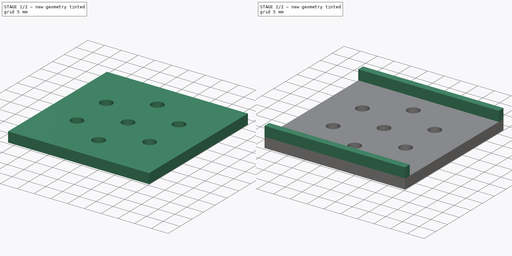
[diagram: build sequence overview — one tinted view per stage of 2, left to right]
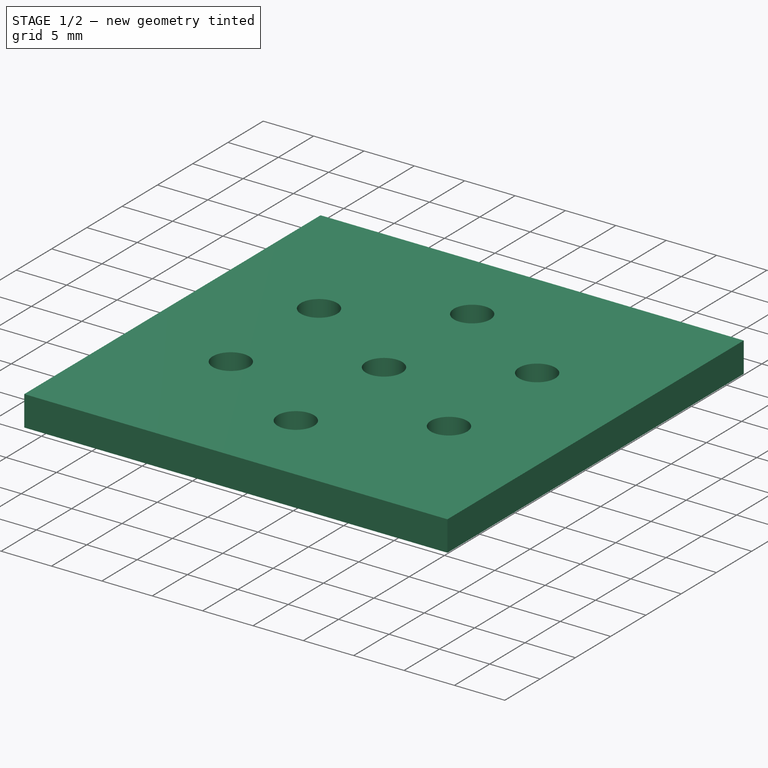
[diagram: stage 1 of 2 — iso view after this stage's code; geometry added in this stage tinted green]
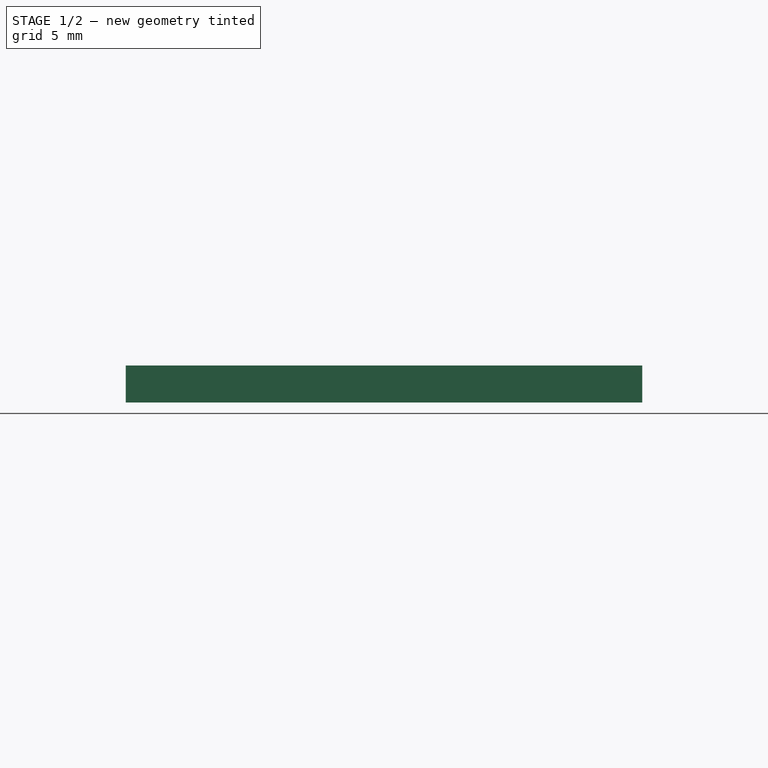
[diagram: stage 1 of 2 — front view after this stage's code; geometry added in this stage tinted green]
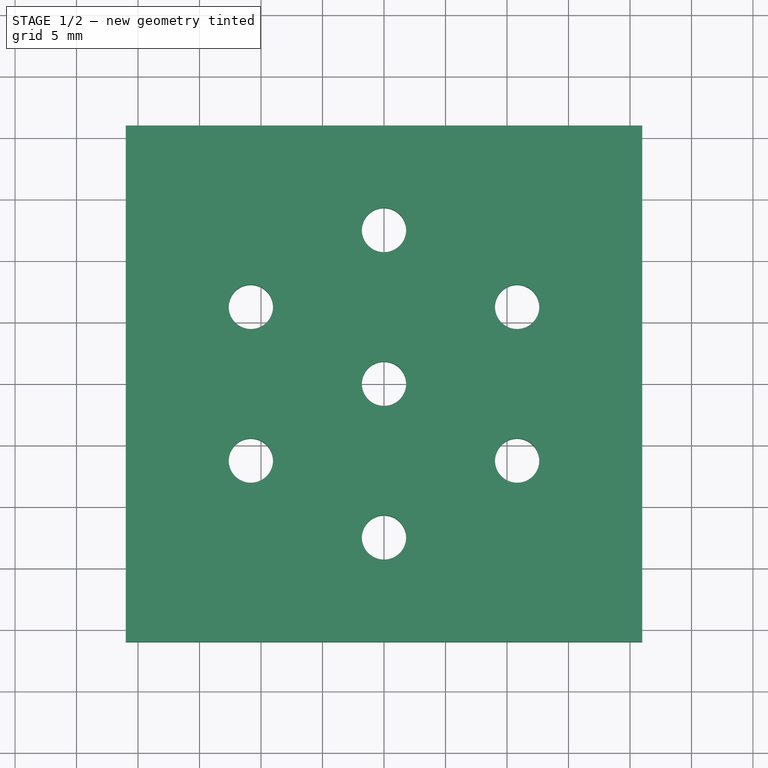
[diagram: stage 1 of 2 — top view after this stage's code; geometry added in this stage tinted green]
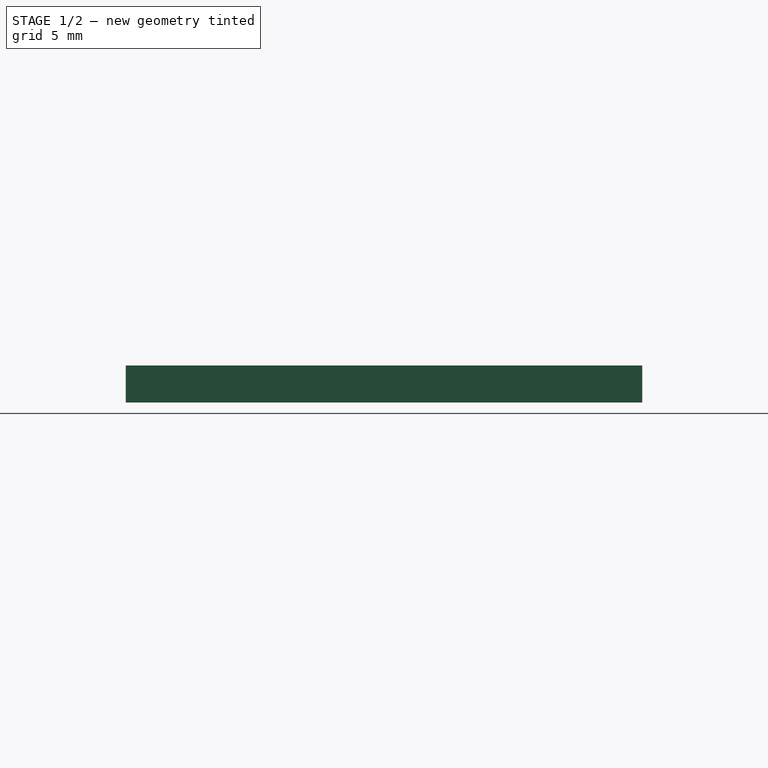
[diagram: stage 1 of 2 — right view after this stage's code; geometry added in this stage tinted green]
FCSTD DOCUMENT
Label: jheadDrillJig
objects: Sketcher::SketchObject×2, PartDesign::Pad×2
note: 6 computed .brp shape members not serialized (recipe doc carries the construction recipe); baked Part::Feature solids carry a one-line shape summary decoded from their .brp

FEATURE [Sketcher::SketchObject] Sketch
  sketch-geometry (20):
    g0: LineSegment StartX=-21 StartY=21 StartZ=0 EndX=21 EndY=21 EndZ=0
    g1: LineSegment StartX=21 StartY=21 StartZ=0 EndX=21 EndY=-21 EndZ=0
    g2: LineSegment StartX=-21 StartY=21 StartZ=0 EndX=-21 EndY=0 EndZ=0
    g3: LineSegment StartX=-21 StartY=0 StartZ=0 EndX=-21 EndY=-21 EndZ=0
    g4: LineSegment StartX=-21 StartY=-21 StartZ=0 EndX=0 EndY=-21 EndZ=0
    g5: LineSegment StartX=0 StartY=-21 StartZ=0 EndX=21 EndY=-21 EndZ=0
    g6: LineSegment [constr] StartX=-10.8253 StartY=6.25 StartZ=0 EndX=-10.8253 EndY=-6.25 EndZ=0
    g7: LineSegment [constr] StartX=-10.8253 StartY=-6.25 StartZ=0 EndX=0 EndY=-12.5 EndZ=0
    g8: LineSegment [constr] StartX=0 StartY=-12.5 StartZ=0 EndX=10.8253 EndY=-6.25 EndZ=0
    g9: LineSegment [constr] StartX=10.8253 StartY=-6.25 StartZ=0 EndX=10.8253 EndY=6.25 EndZ=0
    g10: LineSegment [constr] StartX=10.8253 StartY=6.25 StartZ=0 EndX=0 EndY=12.5 EndZ=0
    g11: LineSegment [constr] StartX=0 StartY=12.5 StartZ=0 EndX=-10.8253 EndY=6.25 EndZ=0
    g12: Circle [constr] CenterX=0 CenterY=0 CenterZ=0 NormalX=0 NormalY=0 NormalZ=1 Radius=12.5
    g13: Circle CenterX=0 CenterY=12.5 CenterZ=0 NormalX=0 NormalY=0 NormalZ=1 Radius=1.8
    g14: Circle CenterX=10.8253 CenterY=6.25 CenterZ=0 NormalX=0 NormalY=0 NormalZ=1 Radius=1.8
    g15: Circle CenterX=10.8253 CenterY=-6.25 CenterZ=0 NormalX=0 NormalY=0 NormalZ=1 Radius=1.8
    g16: Circle CenterX=0 CenterY=-12.5 CenterZ=0 NormalX=0 NormalY=0 NormalZ=1 Radius=1.8
    g17: Circle CenterX=-10.8253 CenterY=-6.25 CenterZ=0 NormalX=0 NormalY=0 NormalZ=1 Radius=1.8
    g18: Circle CenterX=-10.8253 CenterY=6.25 CenterZ=0 NormalX=0 NormalY=0 NormalZ=1 Radius=1.8
    g19: Circle CenterX=0 CenterY=0 CenterZ=0 NormalX=0 NormalY=0 NormalZ=1 Radius=1.8
  constraints (53):
    c: Coincident(g0,g1)
    c: Horizontal(g0)
    c: Vertical(g1)
    c: Coincident(g2,g0)
    c: Vertical(g2)
    c: Coincident(g2,g3)
    c: Vertical(g3)
    c: Coincident(g3,g4)
    c: Horizontal(g4)
    c: Coincident(g4,g5)
    c: Coincident(g5,g1)
    c: Horizontal(g5)
    c: Equal(g4,g5)
    c: Equal(g2,g3)
    c: DistanceY(g1) = -42
    c: DistanceX(g0) = 42
    c: DistanceX(g4) = 0
    c: DistanceY(g2) = 0
    c: Vertical(g6)
    c: Coincident(g6,g7)
    c: Coincident(g7,g8)
    c: Coincident(g8,g9)
    c: Vertical(g9)
    c: Coincident(g9,g10)
    c: Coincident(g10,g11)
    c: Coincident(g11,g6)
    c: PointOnObject(g10,g12)
    c: PointOnObject(g9,g12)
    c: PointOnObject(g8,g12)
    c: PointOnObject(g7,g12)
    c: PointOnObject(g6,g12)
    c: PointOnObject(g6,g12)
    c: DistanceX(g12) = 0
    c: DistanceY(g12) = 0
    c: Equal(g10,g9)
    c: Equal(g9,g8)
    c: Radius(g12) = 12.5
    c: Equal(g9,g6)
    c: Equal(g11,g10)
    c: Coincident(g13,g10)
    c: Coincident(g14,g9)
    c: Coincident(g15,g8)
    c: Coincident(g16,g7)
    c: Coincident(g17,g6)
    c: Coincident(g18,g6)
    c: Equal(g18,g13)
    c: Equal(g13,g14)
    c: Equal(g14,g15)
    c: Equal(g15,g16)
    c: Equal(g16,g17)
    c: Radius(g13) = 1.8
    c: Coincident(g19,g12)
    c: Equal(g19,g14)
FEATURE [PartDesign::Pad] Pad
  Length = 3
  MirroredExtent = false
  Sketch = -> Sketch
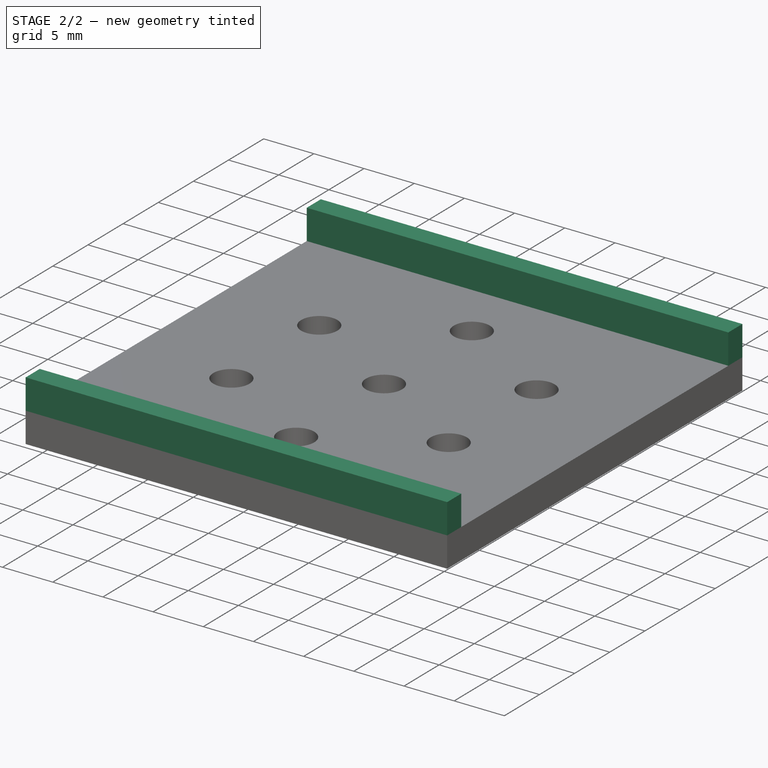
[diagram: stage 2 of 2 — iso view after this stage's code; geometry added in this stage tinted green]
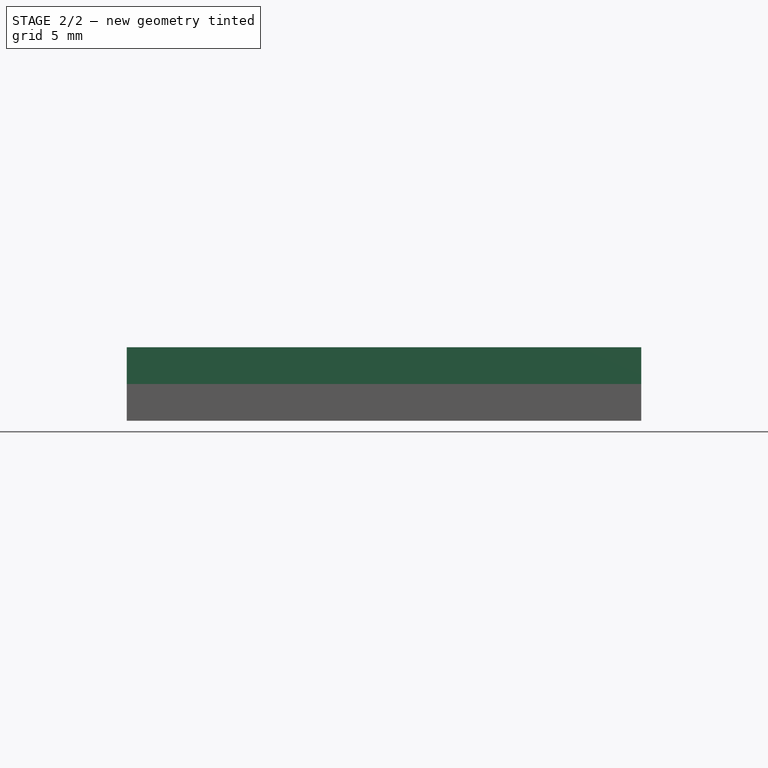
[diagram: stage 2 of 2 — front view after this stage's code; geometry added in this stage tinted green]
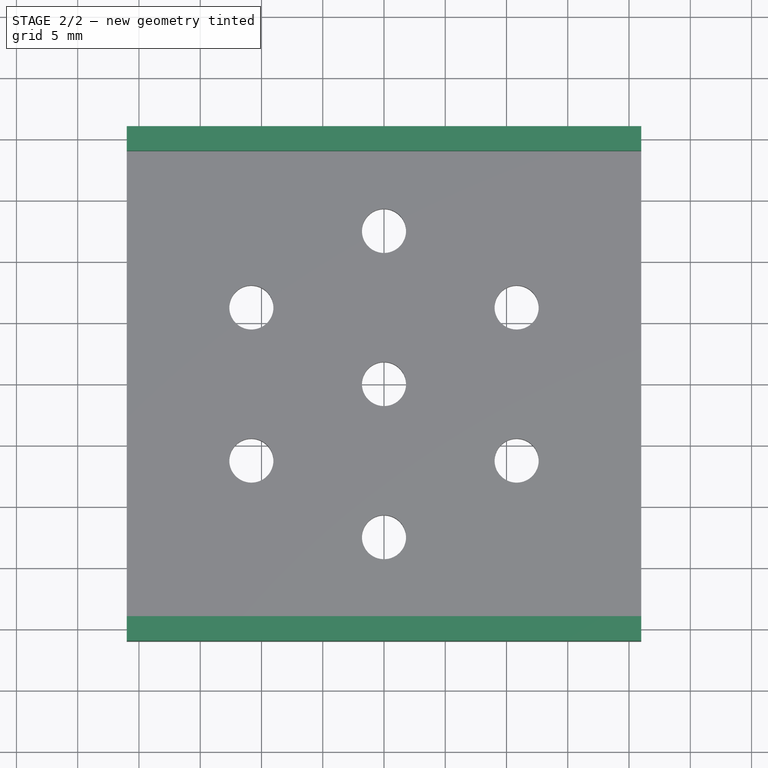
[diagram: stage 2 of 2 — top view after this stage's code; geometry added in this stage tinted green]
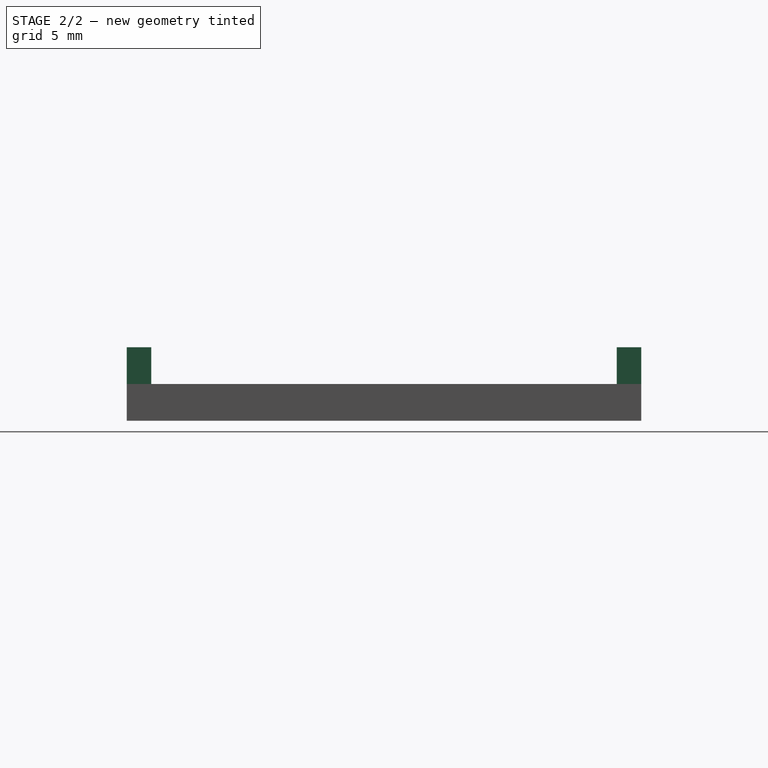
[diagram: stage 2 of 2 — right view after this stage's code; geometry added in this stage tinted green]
FEATURE [Sketcher::SketchObject] Sketch001
  Placement = pos=(0,0,3) rot=(0,0,1;0rad)
  Support = -> Pad [Face15]
  sketch-geometry (12):
    g0: LineSegment StartX=-21 StartY=21 StartZ=0 EndX=21 EndY=21 EndZ=0
    g1: LineSegment StartX=21 StartY=21 StartZ=0 EndX=21 EndY=19 EndZ=0
    g2: LineSegment StartX=-21 StartY=19 StartZ=0 EndX=-21 EndY=21 EndZ=0
    g3: LineSegment StartX=-21 StartY=-21 StartZ=0 EndX=21 EndY=-21 EndZ=0
    g4: LineSegment StartX=21 StartY=-21 StartZ=0 EndX=21 EndY=-19 EndZ=0
    g5: LineSegment StartX=21 StartY=-19 StartZ=0 EndX=-21 EndY=-19 EndZ=0
    g6: LineSegment StartX=-21 StartY=-19 StartZ=0 EndX=-21 EndY=-21 EndZ=0
    g7: LineSegment [constr] StartX=21 StartY=19 StartZ=0 EndX=21 EndY=0 EndZ=0
    g8: LineSegment [constr] StartX=21 StartY=0 StartZ=0 EndX=21 EndY=-19 EndZ=0
    g9: LineSegment [constr] StartX=-21 StartY=19 StartZ=0 EndX=-21 EndY=-19 EndZ=0
    g10: LineSegment StartX=-21 StartY=19 StartZ=0 EndX=0 EndY=19 EndZ=0
    g11: LineSegment StartX=0 StartY=19 StartZ=0 EndX=21 EndY=19 EndZ=0
  constraints (34):
    c: Coincident(g0,g1)
    c: Coincident(g2,g0)
    c: Horizontal(g0)
    c: Vertical(g1)
    c: Vertical(g2)
    c: Coincident(g3,g4)
    c: Coincident(g4,g5)
    c: Coincident(g5,g6)
    c: Coincident(g6,g3)
    c: Horizontal(g3)
    c: Horizontal(g5)
    c: Vertical(g4)
    c: Vertical(g6)
    c: Coincident(g7,g1)
    c: Vertical(g7)
    c: Coincident(g7,g8)
    c: Coincident(g8,g4)
    c: Vertical(g8)
    c: Coincident(g9,g5)
    c: Vertical(g9)
    c: Equal(g7,g8)
    c: Equal(g1,g4)
    c: DistanceY(g0,g3) = -42
    c: DistanceX(g0,g0) = 42
    c: DistanceY(g7) = 0
    c: Coincident(g10,g2)
    c: Horizontal(g10)
    c: Coincident(g10,g11)
    c: Coincident(g11,g1)
    c: Horizontal(g11)
    c: Coincident(g2,g9)
    c: DistanceY(g1) = -2
    c: DistanceX(g10) = 0
    c: Equal(g10,g11)
FEATURE [PartDesign::Pad] Pad001
  Length = 3
  MirroredExtent = false
  Sketch = -> Sketch001
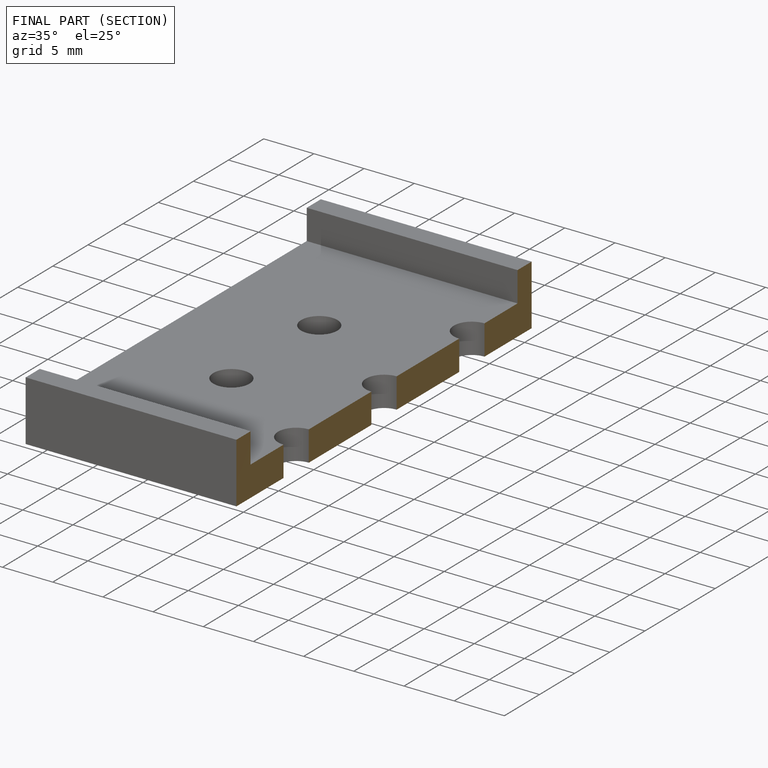
[diagram: finished part — half-section view (interior)]
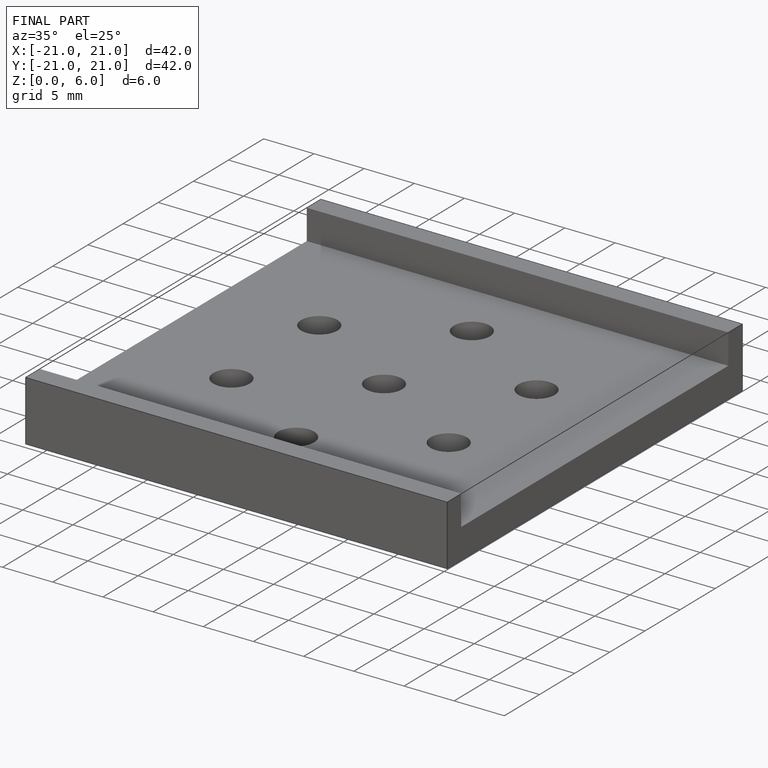
[diagram: finished part — iso view with bounding-box wireframe]
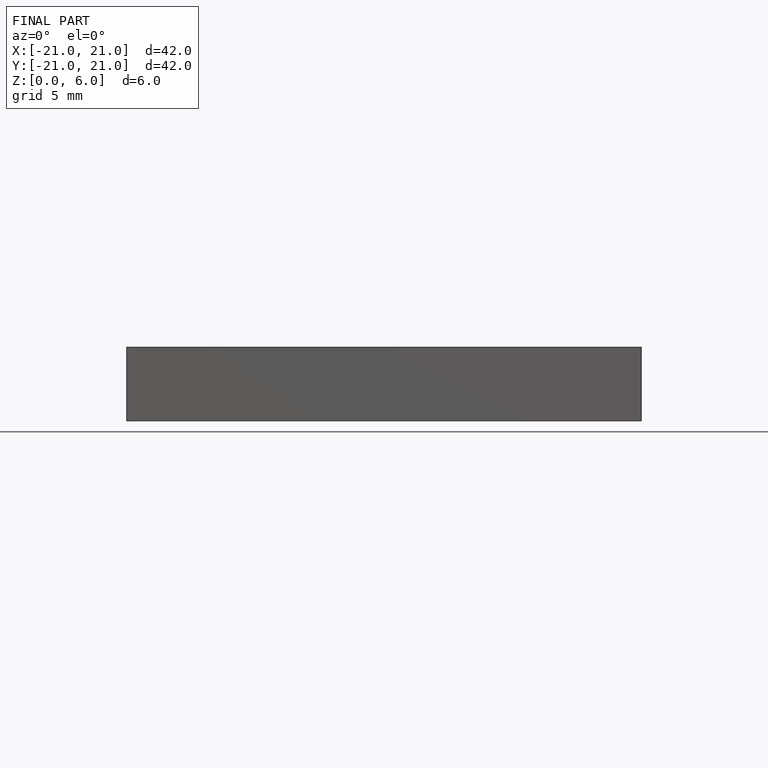
[diagram: finished part — front view with bounding-box wireframe]
